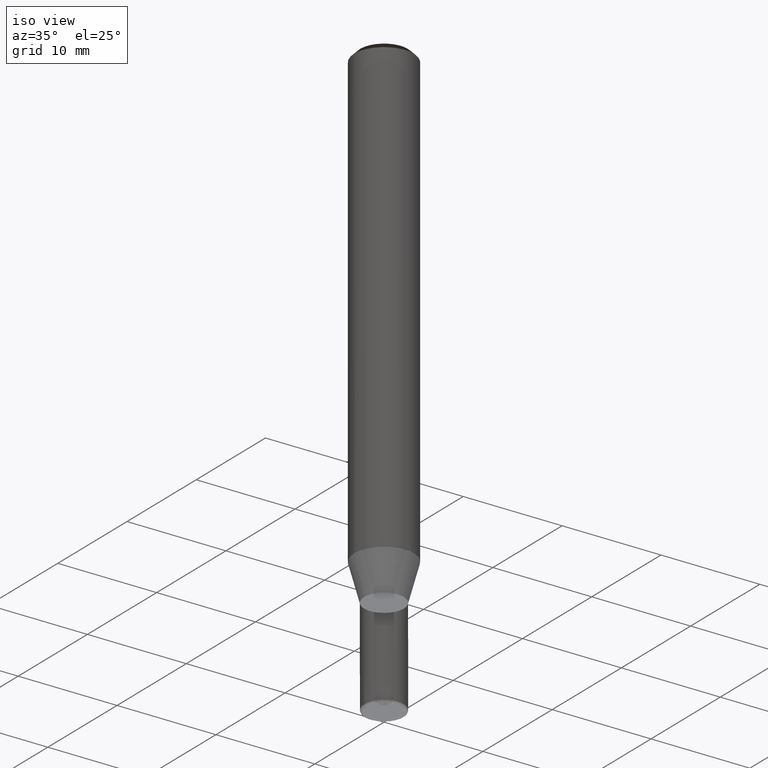
[diagram: clean part render]
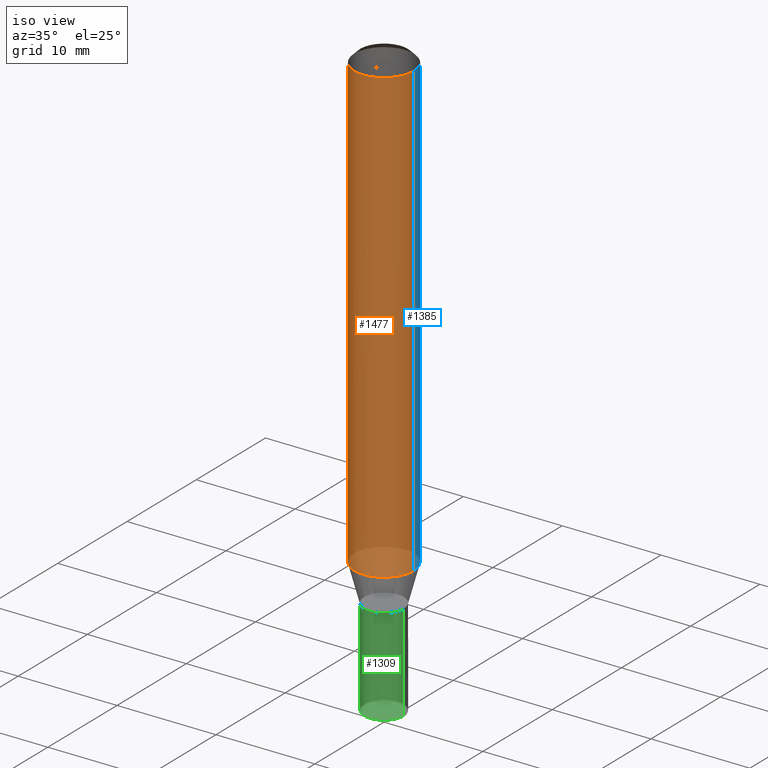
[diagram: same view with three faces highlighted in distinct colors, each labeled with its STEP entity id]
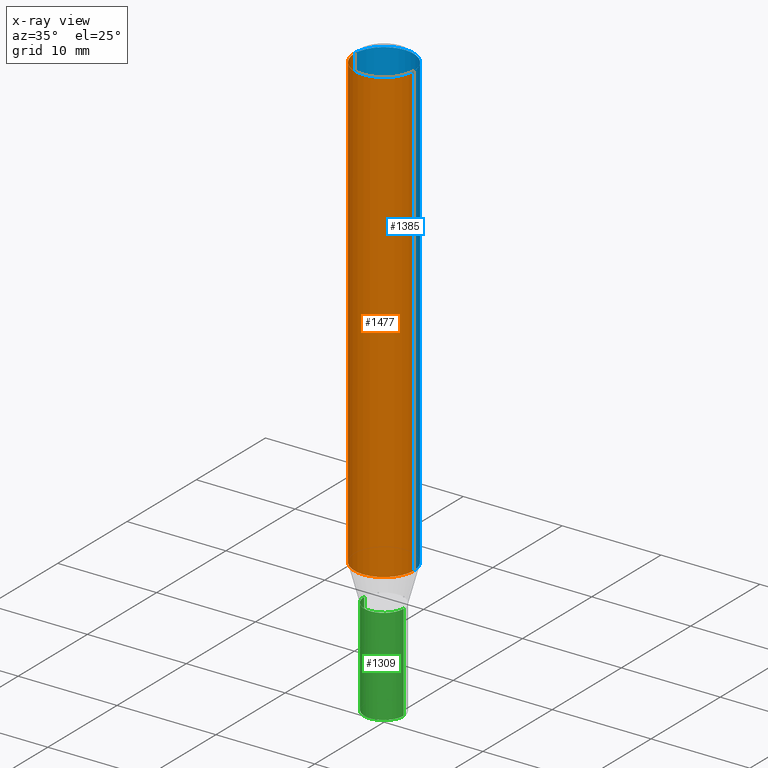
[diagram: x-ray of the same camera — body ghosted, the three highlighted faces saturated]
A machine part, iso view with three faces highlighted in distinct colors.
The next image is the same camera in x-ray (body ghosted, the three faces saturated) — at least one of them is partly hidden behind the body in this view.
Their STEP definitions:

[orange] entity #1477 — the highlighted face is a freeform B-spline surface patch.
#1148=CARTESIAN_POINT('',(3.0,0.0,0.0));
#1152=CARTESIAN_POINT('',(-3.0,0.0,0.0));
#1153=CARTESIAN_POINT('',(3.0,0.0,45.667949192431));
#1157=CARTESIAN_POINT('',(-3.0,0.0,45.667949192431));
#1164=CARTESIAN_POINT('',(-3.0,-3.0,0.0));
#1165=CARTESIAN_POINT('',(0.0,-3.0,0.0));
#1166=CARTESIAN_POINT('',(3.0,-3.0,0.0));
#1167=CARTESIAN_POINT('',(-3.0,-3.0,45.667949192431));
#1168=CARTESIAN_POINT('',(0.0,-3.0,45.667949192431));
#1169=CARTESIAN_POINT('',(3.0,-3.0,45.667949192431));
#1458=(
BOUNDED_SURFACE()
B_SPLINE_SURFACE(1,2,(
(#1152,#1164,#1165,#1166,#1148),
(#1157,#1167,#1168,#1169,#1153)
), .UNSPECIFIED.,.F.,.F.,.F.)
B_SPLINE_SURFACE_WITH_KNOTS((2,2),(3,2,3),(
0.0,1.0),(
0.0,0.5,1.0), .UNSPECIFIED.)
GEOMETRIC_REPRESENTATION_ITEM()
RATIONAL_B_SPLINE_SURFACE(((1.0,0.707106781187,1.0,0.707106781187,1.0),
(1.0,0.707106781187,1.0,0.707106781187,1.0)
))
REPRESENTATION_ITEM('')
SURFACE()
);
#1459=(
BOUNDED_CURVE()
B_SPLINE_CURVE(1,(#1157,#1152),.UNSPECIFIED.,.F.,.F.)
B_SPLINE_CURVE_WITH_KNOTS((2,2),
(0.0,1.0),.UNSPECIFIED.)
CURVE()
GEOMETRIC_REPRESENTATION_ITEM()
RATIONAL_B_SPLINE_CURVE((1.0,1.0))
REPRESENTATION_ITEM('')
);
#1460=(
BOUNDED_CURVE()
B_SPLINE_CURVE(2,(#1152,#1164,#1165,#1166,#1148),.UNSPECIFIED.,.F.,.F.)
B_SPLINE_CURVE_WITH_KNOTS((3,2,3),
(0.0,0.5,1.0),.UNSPECIFIED.)
CURVE()
GEOMETRIC_REPRESENTATION_ITEM()
RATIONAL_B_SPLINE_CURVE((1.0,0.707106781187,1.0,0.707106781187,1.0))
REPRESENTATION_ITEM('')
);
#1461=(
BOUNDED_CURVE()
B_SPLINE_CURVE(1,(#1148,#1153),.UNSPECIFIED.,.F.,.F.)
B_SPLINE_CURVE_WITH_KNOTS((2,2),
(0.0,1.0),.UNSPECIFIED.)
CURVE()
GEOMETRIC_REPRESENTATION_ITEM()
RATIONAL_B_SPLINE_CURVE((1.0,1.0))
REPRESENTATION_ITEM('')
);
#1462=(
BOUNDED_CURVE()
B_SPLINE_CURVE(2,(#1153,#1169,#1168,#1167,#1157),.UNSPECIFIED.,.F.,.F.)
B_SPLINE_CURVE_WITH_KNOTS((3,2,3),
(0.0,0.5,1.0),.UNSPECIFIED.)
CURVE()
GEOMETRIC_REPRESENTATION_ITEM()
RATIONAL_B_SPLINE_CURVE((1.0,0.707106781187,1.0,0.707106781187,1.0))
REPRESENTATION_ITEM('')
);
#1463=VERTEX_POINT('',#1148);
#1464=VERTEX_POINT('',#1152);
#1465=VERTEX_POINT('',#1153);
#1466=VERTEX_POINT('',#1157);
#1467=EDGE_CURVE('',#1466,#1464,#1459,.T.);
#1468=EDGE_CURVE('',#1464,#1463,#1460,.T.);
#1469=EDGE_CURVE('',#1463,#1465,#1461,.T.);
#1470=EDGE_CURVE('',#1465,#1466,#1462,.T.);
#1471=ORIENTED_EDGE('',*,*,#1467,.T.);
#1472=ORIENTED_EDGE('',*,*,#1468,.T.);
#1473=ORIENTED_EDGE('',*,*,#1469,.T.);
#1474=ORIENTED_EDGE('',*,*,#1470,.T.);
#1475=EDGE_LOOP('',(#1471,#1472,#1473,#1474));
#1476=FACE_OUTER_BOUND('',#1475,.T.);
#1477=ADVANCED_FACE('',(#1476),#1458,.T.);

[blue] entity #1385 — the highlighted face is a freeform B-spline surface patch.
#1148=CARTESIAN_POINT('',(3.0,0.0,0.0));
#1149=CARTESIAN_POINT('',(3.0,3.0,0.0));
#1150=CARTESIAN_POINT('',(0.0,3.0,0.0));
#1151=CARTESIAN_POINT('',(-3.0,3.0,0.0));
#1152=CARTESIAN_POINT('',(-3.0,0.0,0.0));
#1153=CARTESIAN_POINT('',(3.0,0.0,45.667949192431));
#1154=CARTESIAN_POINT('',(3.0,3.0,45.667949192431));
#1155=CARTESIAN_POINT('',(0.0,3.0,45.667949192431));
#1156=CARTESIAN_POINT('',(-3.0,3.0,45.667949192431));
#1157=CARTESIAN_POINT('',(-3.0,0.0,45.667949192431));
#1366=(
BOUNDED_SURFACE()
B_SPLINE_SURFACE(1,2,(
(#1148,#1149,#1150,#1151,#1152),
(#1153,#1154,#1155,#1156,#1157)
), .UNSPECIFIED.,.F.,.F.,.F.)
B_SPLINE_SURFACE_WITH_KNOTS((2,2),(3,2,3),(
0.0,1.0),(
0.0,0.5,1.0), .UNSPECIFIED.)
GEOMETRIC_REPRESENTATION_ITEM()
RATIONAL_B_SPLINE_SURFACE(((1.0,0.707106781187,1.0,0.707106781187,1.0),
(1.0,0.707106781187,1.0,0.707106781187,1.0)
))
REPRESENTATION_ITEM('')
SURFACE()
);
#1367=(
BOUNDED_CURVE()
B_SPLINE_CURVE(2,(#1153,#1154,#1155,#1156,#1157),.UNSPECIFIED.,.F.,.F.)
B_SPLINE_CURVE_WITH_KNOTS((3,2,3),
(0.0,0.5,1.0),.UNSPECIFIED.)
CURVE()
GEOMETRIC_REPRESENTATION_ITEM()
RATIONAL_B_SPLINE_CURVE((1.0,0.707106781187,1.0,0.707106781187,1.0))
REPRESENTATION_ITEM('')
);
#1368=(
BOUNDED_CURVE()
B_SPLINE_CURVE(1,(#1157,#1152),.UNSPECIFIED.,.F.,.F.)
B_SPLINE_CURVE_WITH_KNOTS((2,2),
(0.0,1.0),.UNSPECIFIED.)
CURVE()
GEOMETRIC_REPRESENTATION_ITEM()
RATIONAL_B_SPLINE_CURVE((1.0,1.0))
REPRESENTATION_ITEM('')
);
#1369=(
BOUNDED_CURVE()
B_SPLINE_CURVE(2,(#1152,#1151,#1150,#1149,#1148),.UNSPECIFIED.,.F.,.F.)
B_SPLINE_CURVE_WITH_KNOTS((3,2,3),
(0.0,0.5,1.0),.UNSPECIFIED.)
CURVE()
GEOMETRIC_REPRESENTATION_ITEM()
RATIONAL_B_SPLINE_CURVE((1.0,0.707106781187,1.0,0.707106781187,1.0))
REPRESENTATION_ITEM('')
);
#1370=(
BOUNDED_CURVE()
B_SPLINE_CURVE(1,(#1148,#1153),.UNSPECIFIED.,.F.,.F.)
B_SPLINE_CURVE_WITH_KNOTS((2,2),
(0.0,1.0),.UNSPECIFIED.)
CURVE()
GEOMETRIC_REPRESENTATION_ITEM()
RATIONAL_B_SPLINE_CURVE((1.0,1.0))
REPRESENTATION_ITEM('')
);
#1371=VERTEX_POINT('',#1148);
#1372=VERTEX_POINT('',#1152);
#1373=VERTEX_POINT('',#1153);
#1374=VERTEX_POINT('',#1157);
#1375=EDGE_CURVE('',#1373,#1374,#1367,.T.);
#1376=EDGE_CURVE('',#1374,#1372,#1368,.T.);
#1377=EDGE_CURVE('',#1372,#1371,#1369,.T.);
#1378=EDGE_CURVE('',#1371,#1373,#1370,.T.);
#1379=ORIENTED_EDGE('',*,*,#1375,.T.);
#1380=ORIENTED_EDGE('',*,*,#1376,.T.);
#1381=ORIENTED_EDGE('',*,*,#1377,.T.);
#1382=ORIENTED_EDGE('',*,*,#1378,.T.);
#1383=EDGE_LOOP('',(#1379,#1380,#1381,#1382));
#1384=FACE_OUTER_BOUND('',#1383,.T.);
#1385=ADVANCED_FACE('',(#1384),#1366,.T.);

[green] entity #1309 — the highlighted face is a freeform B-spline surface patch.
#1119=CARTESIAN_POINT('',(2.0,0.0,-13.532050807569));
#1123=CARTESIAN_POINT('',(-2.0,0.0,-13.532050807569));
#1124=CARTESIAN_POINT('',(2.0,0.0,-3.732050807569));
#1128=CARTESIAN_POINT('',(-2.0,0.0,-3.732050807569));
#1142=CARTESIAN_POINT('',(-2.0,-2.0,-13.532050807569));
#1143=CARTESIAN_POINT('',(0.0,-2.0,-13.532050807569));
#1144=CARTESIAN_POINT('',(2.0,-2.0,-13.532050807569));
#1145=CARTESIAN_POINT('',(-2.0,-2.0,-3.732050807569));
#1146=CARTESIAN_POINT('',(0.0,-2.0,-3.732050807569));
#1147=CARTESIAN_POINT('',(2.0,-2.0,-3.732050807569));
#1290=(
BOUNDED_SURFACE()
B_SPLINE_SURFACE(1,2,(
(#1123,#1142,#1143,#1144,#1119),
(#1128,#1145,#1146,#1147,#1124)
), .UNSPECIFIED.,.F.,.F.,.F.)
B_SPLINE_SURFACE_WITH_KNOTS((2,2),(3,2,3),(
0.0,1.0),(
0.0,0.5,1.0), .UNSPECIFIED.)
GEOMETRIC_REPRESENTATION_ITEM()
RATIONAL_B_SPLINE_SURFACE(((1.0,0.707106781187,1.0,0.707106781187,1.0),
(1.0,0.707106781187,1.0,0.707106781187,1.0)
))
REPRESENTATION_ITEM('')
SURFACE()
);
#1291=(
BOUNDED_CURVE()
B_SPLINE_CURVE(1,(#1128,#1123),.UNSPECIFIED.,.F.,.F.)
B_SPLINE_CURVE_WITH_KNOTS((2,2),
(0.0,1.0),.UNSPECIFIED.)
CURVE()
GEOMETRIC_REPRESENTATION_ITEM()
RATIONAL_B_SPLINE_CURVE((1.0,1.0))
REPRESENTATION_ITEM('')
);
#1292=(
BOUNDED_CURVE()
B_SPLINE_CURVE(2,(#1123,#1142,#1143,#1144,#1119),.UNSPECIFIED.,.F.,.F.)
B_SPLINE_CURVE_WITH_KNOTS((3,2,3),
(0.0,0.5,1.0),.UNSPECIFIED.)
CURVE()
GEOMETRIC_REPRESENTATION_ITEM()
RATIONAL_B_SPLINE_CURVE((1.0,0.707106781187,1.0,0.707106781187,1.0))
REPRESENTATION_ITEM('')
);
#1293=(
BOUNDED_CURVE()
B_SPLINE_CURVE(1,(#1119,#1124),.UNSPECIFIED.,.F.,.F.)
B_SPLINE_CURVE_WITH_KNOTS((2,2),
(0.0,1.0),.UNSPECIFIED.)
CURVE()
GEOMETRIC_REPRESENTATION_ITEM()
RATIONAL_B_SPLINE_CURVE((1.0,1.0))
REPRESENTATION_ITEM('')
);
#1294=(
BOUNDED_CURVE()
B_SPLINE_CURVE(2,(#1124,#1147,#1146,#1145,#1128),.UNSPECIFIED.,.F.,.F.)
B_SPLINE_CURVE_WITH_KNOTS((3,2,3),
(0.0,0.5,1.0),.UNSPECIFIED.)
CURVE()
GEOMETRIC_REPRESENTATION_ITEM()
RATIONAL_B_SPLINE_CURVE((1.0,0.707106781187,1.0,0.707106781187,1.0))
REPRESENTATION_ITEM('')
);
#1295=VERTEX_POINT('',#1119);
#1296=VERTEX_POINT('',#1123);
#1297=VERTEX_POINT('',#1124);
#1298=VERTEX_POINT('',#1128);
#1299=EDGE_CURVE('',#1298,#1296,#1291,.T.);
#1300=EDGE_CURVE('',#1296,#1295,#1292,.T.);
#1301=EDGE_CURVE('',#1295,#1297,#1293,.T.);
#1302=EDGE_CURVE('',#1297,#1298,#1294,.T.);
#1303=ORIENTED_EDGE('',*,*,#1299,.T.);
#1304=ORIENTED_EDGE('',*,*,#1300,.T.);
#1305=ORIENTED_EDGE('',*,*,#1301,.T.);
#1306=ORIENTED_EDGE('',*,*,#1302,.T.);
#1307=EDGE_LOOP('',(#1303,#1304,#1305,#1306));
#1308=FACE_OUTER_BOUND('',#1307,.T.);
#1309=ADVANCED_FACE('',(#1308),#1290,.T.);